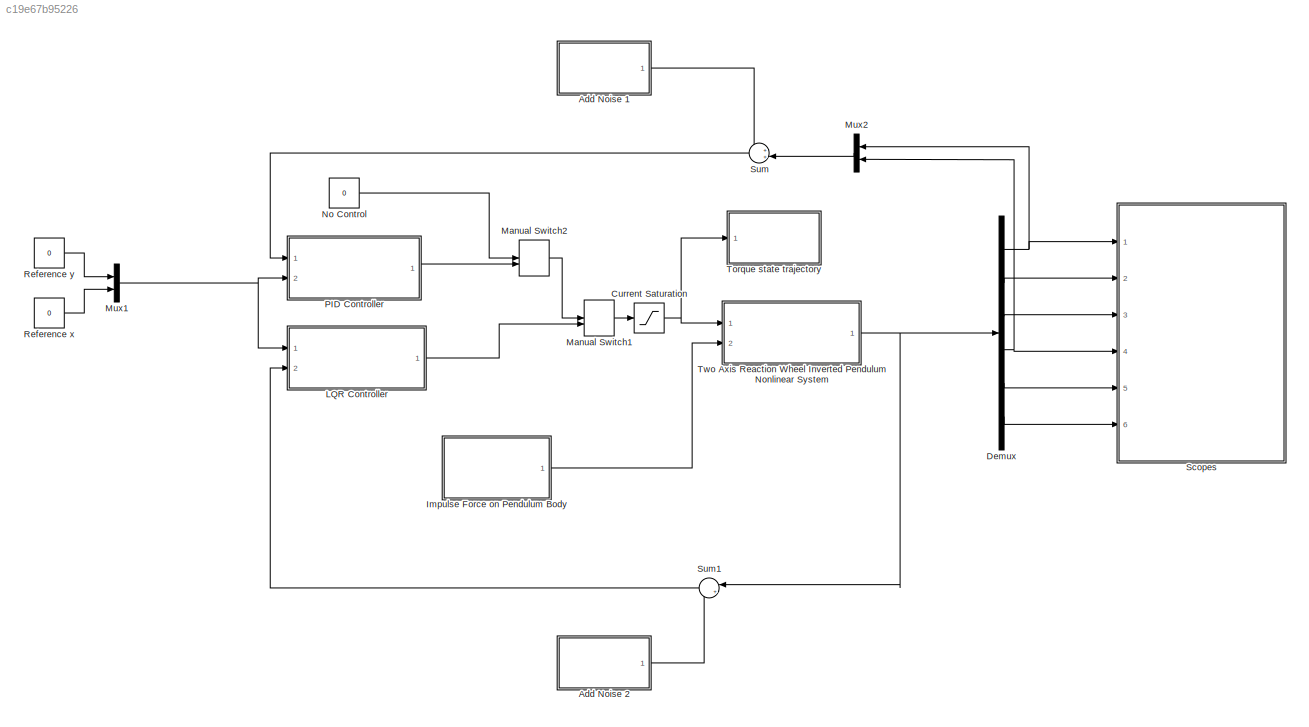
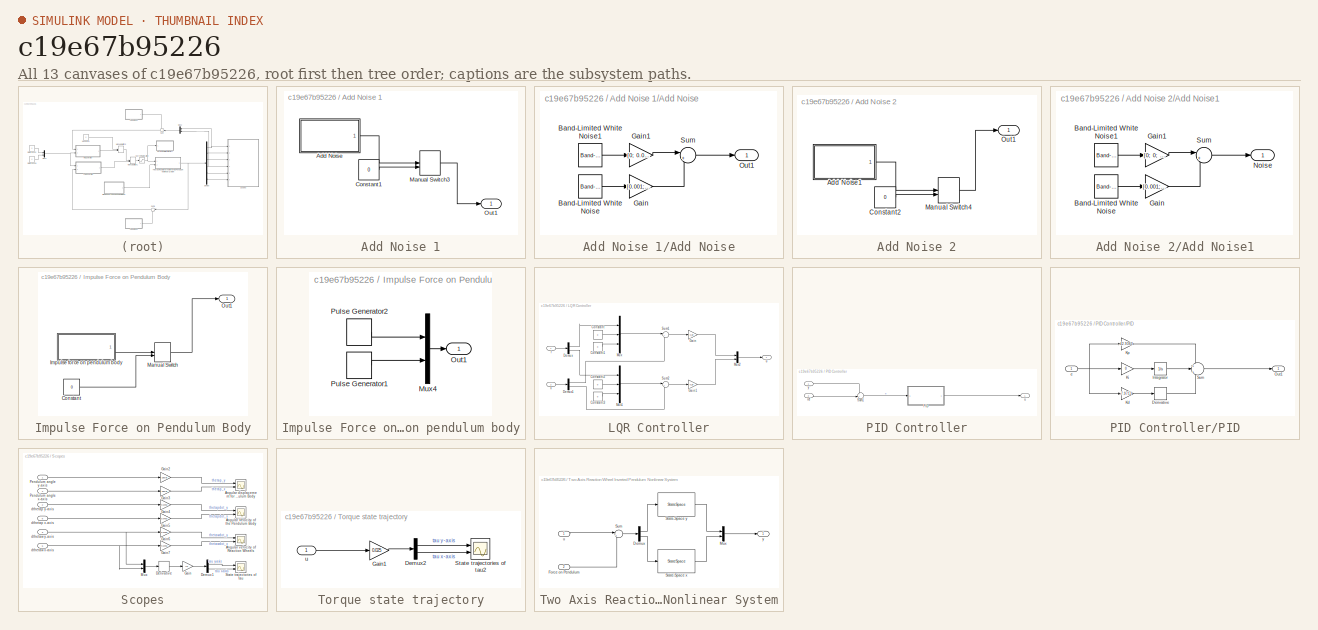
[diagram: thumbnail index - all 13 canvases of the model, root first then tree order]
MODEL slx_c19e67b95226
KIND model
CONFIG AbsTol = auto
CONFIG EnableMultiTasking = off
CONFIG FixedStep = auto
CONFIG MaxStep = auto
CONFIG MinStep = auto
CONFIG RelTol = 1e-3
CONFIG SampleTimeConstraint = Unconstrained
CONFIG Solver = VariableStepAuto
CONFIG SolverName = VariableStepAuto
CONFIG StartTime = 0.0
CONFIG StopTime = 10.0
BLOCK [SubSystem] Add Noise 1
  Ports = [0, 1]
  RequestExecContextInheritance = off
BLOCK [SubSystem] Add Noise 1/Add Noise
  Ports = [0, 1]
  RequestExecContextInheritance = off
BLOCK [Reference] Add Noise 1/Add Noise/Band-Limited White Noise  REF=simulink/Sources/Band-Limited
White Noise
  Ports = [0, 1]
  SourceBlock = simulink/Sources/Band-Limited\nWhite Noise
  SourceProductBaseCode = SL
  SourceProductName = Simulink
  SourceType = Band-Limited White Noise.
BLOCK [Reference] Add Noise 1/Add Noise/Band-Limited White Noise1  REF=simulink/Sources/Band-Limited
White Noise
  Ports = [0, 1]
  SourceBlock = simulink/Sources/Band-Limited\nWhite Noise
  SourceProductBaseCode = SL
  SourceProductName = Simulink
  SourceType = Band-Limited White Noise.
BLOCK [Gain] Add Noise 1/Add Noise/Gain
  Gain = [0.001; 0]
  Multiplication = Matrix(K*u)
  OutDataTypeStr = Inherit: Inherit via internal rule
  ParamDataTypeStr = Inherit: Inherit via internal rule
  SaturateOnIntegerOverflow = off
BLOCK [Gain] Add Noise 1/Add Noise/Gain1
  Gain = [0; 0.001]
  Multiplication = Matrix(K*u)
  OutDataTypeStr = Inherit: Inherit via internal rule
  ParamDataTypeStr = Inherit: Inherit via internal rule
  SaturateOnIntegerOverflow = off
BLOCK [Outport] Add Noise 1/Add Noise/Out1
  IconDisplay = Port number
BLOCK [Sum] Add Noise 1/Add Noise/Sum
  IconShape = round
  InputSameDT = off
  Inputs = |++
  OutDataTypeStr = Inherit: Inherit via internal rule
  Ports = [2, 1]
  SaturateOnIntegerOverflow = off
BLOCK [Constant] Add Noise 1/Constant1
  Value = 0
BLOCK [ManualSwitch] Add Noise 1/Manual Switch3
  CurrentSetting = 0
BLOCK [Outport] Add Noise 1/Out1
  IconDisplay = Port number
BLOCK [SubSystem] Add Noise 2
  Ports = [0, 1]
  RequestExecContextInheritance = off
BLOCK [SubSystem] Add Noise 2/Add Noise1
  Ports = [0, 1]
  RequestExecContextInheritance = off
BLOCK [Reference] Add Noise 2/Add Noise1/Band-Limited White Noise  REF=simulink/Sources/Band-Limited
White Noise
  Ports = [0, 1]
  SourceBlock = simulink/Sources/Band-Limited\nWhite Noise
  SourceProductBaseCode = SL
  SourceProductName = Simulink
  SourceType = Band-Limited White Noise.
BLOCK [Reference] Add Noise 2/Add Noise1/Band-Limited White Noise1  REF=simulink/Sources/Band-Limited
White Noise
  Ports = [0, 1]
  SourceBlock = simulink/Sources/Band-Limited\nWhite Noise
  SourceProductBaseCode = SL
  SourceProductName = Simulink
  SourceType = Band-Limited White Noise.
BLOCK [Gain] Add Noise 2/Add Noise1/Gain
  Gain = [0.001; 0; 0; 0; 0; 0]
  Multiplication = Matrix(K*u)
  OutDataTypeStr = Inherit: Inherit via internal rule
  ParamDataTypeStr = Inherit: Inherit via internal rule
  SaturateOnIntegerOverflow = off
BLOCK [Gain] Add Noise 2/Add Noise1/Gain1
  Gain = [0; 0; 0; 0.001; 0; 0]
  Multiplication = Matrix(K*u)
  OutDataTypeStr = Inherit: Inherit via internal rule
  ParamDataTypeStr = Inherit: Inherit via internal rule
  SaturateOnIntegerOverflow = off
BLOCK [Outport] Add Noise 2/Add Noise1/Noise
  IconDisplay = Port number
BLOCK [Sum] Add Noise 2/Add Noise1/Sum
  IconShape = round
  InputSameDT = off
  Inputs = |++
  OutDataTypeStr = Inherit: Inherit via internal rule
  Ports = [2, 1]
  SaturateOnIntegerOverflow = off
BLOCK [Constant] Add Noise 2/Constant2
  Value = 0
BLOCK [ManualSwitch] Add Noise 2/Manual Switch4
  CurrentSetting = 0
BLOCK [Outport] Add Noise 2/Out1
  IconDisplay = Port number
BLOCK [Saturate] Current Saturation
  InputPortMap = u0
  LowerLimit = -Imax
  Ports = [1, 1]
  UpperLimit = Imax
BLOCK [Demux] Demux
  DisplayOption = bar
  Outputs = 6
  Ports = [1, 6]
BLOCK [SubSystem] Impulse Force on Pendulum Body
  Ports = [0, 1]
  RequestExecContextInheritance = off
BLOCK [Constant] Impulse Force on Pendulum Body/Constant
  Value = 0
BLOCK [SubSystem] Impulse Force on Pendulum Body/Impulse force on pendulum body
  Ports = [0, 1]
  RequestExecContextInheritance = off
BLOCK [Mux] Impulse Force on Pendulum Body/Impulse force on pendulum body/Mux4
  DisplayOption = bar
  Inputs = 2
  Ports = [2, 1]
BLOCK [Outport] Impulse Force on Pendulum Body/Impulse force on pendulum body/Out1
  IconDisplay = Port number
BLOCK [DiscretePulseGenerator] Impulse Force on Pendulum Body/Impulse force on pendulum body/Pulse Generator1
  Amplitude = -100
  Period = 10
  PhaseDelay = 5
  Ports = [0, 1]
  PulseType = Time based
  PulseWidth = 0.3
BLOCK [DiscretePulseGenerator] Impulse Force on Pendulum Body/Impulse force on pendulum body/Pulse Generator2
  Amplitude = 200
  Period = 10
  PhaseDelay = 5
  Ports = [0, 1]
  PulseType = Time based
  PulseWidth = 0.3
BLOCK [ManualSwitch] Impulse Force on Pendulum Body/Manual Switch
BLOCK [Outport] Impulse Force on Pendulum Body/Out1
  IconDisplay = Port number
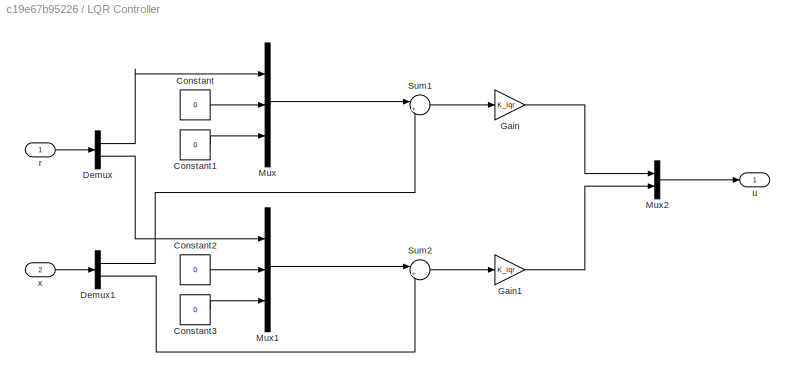
BLOCK [SubSystem] LQR Controller
  Ports = [2, 1]
  RequestExecContextInheritance = off
BLOCK [Constant] LQR Controller/Constant
  Value = 0
BLOCK [Constant] LQR Controller/Constant1
  Value = 0
BLOCK [Constant] LQR Controller/Constant2
  Value = 0
BLOCK [Constant] LQR Controller/Constant3
  Value = 0
BLOCK [Demux] LQR Controller/Demux
  DisplayOption = bar
  Outputs = 2
  Ports = [1, 2]
BLOCK [Demux] LQR Controller/Demux1
  DisplayOption = bar
  Outputs = 2
  Ports = [1, 2]
BLOCK [Gain] LQR Controller/Gain
  Gain = K_lqr
  Multiplication = Matrix(K*u)
  OutDataTypeStr = Inherit: Inherit via internal rule
  ParamDataTypeStr = Inherit: Inherit via internal rule
  SaturateOnIntegerOverflow = off
BLOCK [Gain] LQR Controller/Gain1
  Gain = K_lqr
  Multiplication = Matrix(K*u)
  OutDataTypeStr = Inherit: Inherit via internal rule
  ParamDataTypeStr = Inherit: Inherit via internal rule
  SaturateOnIntegerOverflow = off
BLOCK [Mux] LQR Controller/Mux
  DisplayOption = bar
  Inputs = 3
  Ports = [3, 1]
BLOCK [Mux] LQR Controller/Mux1
  DisplayOption = bar
  Inputs = 3
  Ports = [3, 1]
BLOCK [Mux] LQR Controller/Mux2
  DisplayOption = bar
  Inputs = 2
  Ports = [2, 1]
BLOCK [Sum] LQR Controller/Sum1
  IconShape = round
  InputSameDT = off
  Inputs = |+-
  OutDataTypeStr = Inherit: Inherit via internal rule
  Ports = [2, 1]
  SaturateOnIntegerOverflow = off
BLOCK [Sum] LQR Controller/Sum2
  IconShape = round
  InputSameDT = off
  Inputs = |+-
  OutDataTypeStr = Inherit: Inherit via internal rule
  Ports = [2, 1]
  SaturateOnIntegerOverflow = off
BLOCK [Inport] LQR Controller/r
  IconDisplay = Port number
BLOCK [Outport] LQR Controller/u
  IconDisplay = Port number
BLOCK [Inport] LQR Controller/x
  IconDisplay = Port number
  Port = 2
BLOCK [ManualSwitch] Manual Switch1
BLOCK [ManualSwitch] Manual Switch2
  CurrentSetting = 0
BLOCK [Mux] Mux1
  DisplayOption = bar
  Inputs = 2
  Ports = [2, 1]
BLOCK [Mux] Mux2
  DisplayOption = bar
  Inputs = 2
  Ports = [2, 1]
BLOCK [Constant] No Control
  Value = 0
BLOCK [SubSystem] PID Controller
  Ports = [2, 1]
  RequestExecContextInheritance = off
BLOCK [SubSystem] PID Controller/PID
  Ports = [1, 1]
  RequestExecContextInheritance = off
BLOCK [Derivative] PID Controller/PID/Derivative
BLOCK [Integrator] PID Controller/PID/Integrator
  Ports = [1, 1]
BLOCK [Gain] PID Controller/PID/Kd
  Gain = -7.9713
  OutDataTypeStr = Inherit: Inherit via internal rule
  ParamDataTypeStr = Inherit: Inherit via internal rule
  SaturateOnIntegerOverflow = off
BLOCK [Gain] PID Controller/PID/Ki
  Gain = 0
  OutDataTypeStr = Inherit: Inherit via internal rule
  ParamDataTypeStr = Inherit: Inherit via internal rule
  SaturateOnIntegerOverflow = off
BLOCK [Gain] PID Controller/PID/Kp
  Gain = -42.9360
  OutDataTypeStr = Inherit: Inherit via internal rule
  ParamDataTypeStr = Inherit: Inherit via internal rule
  SaturateOnIntegerOverflow = off
BLOCK [Outport] PID Controller/PID/Out1
  IconDisplay = Port number
BLOCK [Sum] PID Controller/PID/Sum
  IconShape = round
  InputSameDT = off
  Inputs = +|+|+
  OutDataTypeStr = Inherit: Inherit via internal rule
  Ports = [3, 1]
  SaturateOnIntegerOverflow = off
BLOCK [Inport] PID Controller/PID/e
  IconDisplay = Port number
BLOCK [Sum] PID Controller/Sum1
  IconShape = round
  InputSameDT = off
  Inputs = -+|
  OutDataTypeStr = Inherit: Inherit via internal rule
  Ports = [2, 1]
  SaturateOnIntegerOverflow = off
BLOCK [Inport] PID Controller/ref
  IconDisplay = Port number
  Port = 2
BLOCK [Outport] PID Controller/u
  IconDisplay = Port number
BLOCK [Inport] PID Controller/y
  IconDisplay = Port number
BLOCK [Constant] Reference x
  Value = 0
BLOCK [Constant] Reference y
  Value = 0
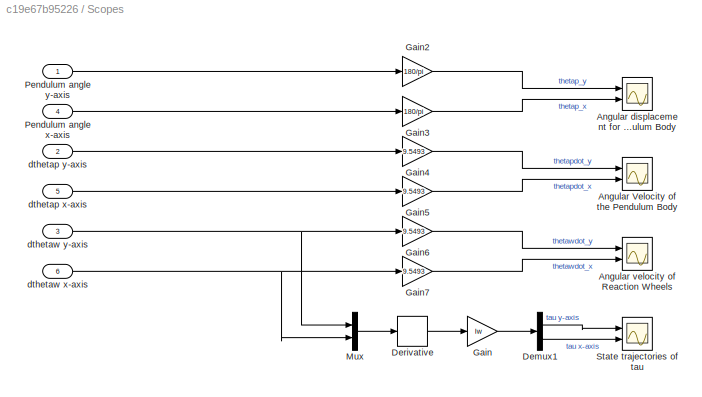
BLOCK [SubSystem] Scopes
  Ports = [6]
  RequestExecContextInheritance = off
BLOCK [Scope] Scopes/Angular Velocity of the Pendulum Body
  Floating = off
  NumInputPorts = 2
  Ports = [2]
  ScopeSpecificationString = Simulink.scopes.TimeScopeBlockCfg('CurrentConfiguration', extmgr.ConfigurationSet(extmgr.Configuration('Core','General UI',true,'FigureColor',[1 1 1]),extmgr.Configuration('Core','Source UI',true),extmgr.Configuration('Sources','WiredSimulink',true,'DataLoggingVariableName','ScopeData1'),extmgr.Configuration('Visuals','Time Domain',true,'SerializedDisplays',{struct('MinYLimReal','-68.62772','MaxYL...<+1709ch>
BLOCK [Scope] Scopes/Angular displacement for Pendulum Body
  Floating = off
  NumInputPorts = 2
  Ports = [2]
  ScopeSpecificationString = Simulink.scopes.TimeScopeBlockCfg('CurrentConfiguration', extmgr.ConfigurationSet(extmgr.Configuration('Core','General UI',true,'FigureColor',[1 1 1]),extmgr.Configuration('Core','Source UI',true),extmgr.Configuration('Sources','WiredSimulink',true,'DataLoggingVariableName','ScopeData2'),extmgr.Configuration('Visuals','Time Domain',true,'SerializedDisplays',{struct('MinYLimReal','-7.5','MaxYLimRea...<+1835ch>
BLOCK [Scope] Scopes/Angular velocity of Reaction Wheels
  Floating = off
  NumInputPorts = 2
  Ports = [2]
  ScopeSpecificationString = Simulink.scopes.TimeScopeBlockCfg('CurrentConfiguration', extmgr.ConfigurationSet(extmgr.Configuration('Core','General UI',true,'FigureColor',[1 1 1]),extmgr.Configuration('Core','Source UI',true),extmgr.Configuration('Sources','WiredSimulink',true,'DataLoggingVariableName','ScopeData3'),extmgr.Configuration('Visuals','Time Domain',true,'SerializedDisplays',{struct('MinYLimReal','-2071897851938583...<+2003ch>
BLOCK [Demux] Scopes/Demux1
  DisplayOption = bar
  Outputs = 2
  Ports = [1, 2]
BLOCK [Derivative] Scopes/Derivative
BLOCK [Gain] Scopes/Gain
  Gain = Iw
  OutDataTypeStr = Inherit: Inherit via internal rule
  ParamDataTypeStr = Inherit: Inherit via internal rule
  SaturateOnIntegerOverflow = off
BLOCK [Gain] Scopes/Gain2
  Gain = 180/pi
  OutDataTypeStr = Inherit: Inherit via internal rule
  ParamDataTypeStr = Inherit: Inherit via internal rule
  SaturateOnIntegerOverflow = off
BLOCK [Gain] Scopes/Gain3
  Gain = 180/pi
  OutDataTypeStr = Inherit: Inherit via internal rule
  ParamDataTypeStr = Inherit: Inherit via internal rule
  SaturateOnIntegerOverflow = off
BLOCK [Gain] Scopes/Gain4
  Gain = 9.5493
  OutDataTypeStr = Inherit: Inherit via internal rule
  ParamDataTypeStr = Inherit: Inherit via internal rule
  SaturateOnIntegerOverflow = off
BLOCK [Gain] Scopes/Gain5
  Gain = 9.5493
  OutDataTypeStr = Inherit: Inherit via internal rule
  ParamDataTypeStr = Inherit: Inherit via internal rule
  SaturateOnIntegerOverflow = off
BLOCK [Gain] Scopes/Gain6
  Gain = 9.5493
  OutDataTypeStr = Inherit: Inherit via internal rule
  ParamDataTypeStr = Inherit: Inherit via internal rule
  SaturateOnIntegerOverflow = off
BLOCK [Gain] Scopes/Gain7
  Gain = 9.5493
  OutDataTypeStr = Inherit: Inherit via internal rule
  ParamDataTypeStr = Inherit: Inherit via internal rule
  SaturateOnIntegerOverflow = off
BLOCK [Mux] Scopes/Mux
  DisplayOption = bar
  Inputs = 2
  Ports = [2, 1]
BLOCK [Inport] Scopes/Pendulum angle x-axis
  IconDisplay = Port number
  Port = 4
BLOCK [Inport] Scopes/Pendulum angle y-axis
  IconDisplay = Port number
BLOCK [Scope] Scopes/State trajectories of tau
  Floating = off
  NumInputPorts = 2
  Ports = [2]
  ScopeSpecificationString = Simulink.scopes.TimeScopeBlockCfg('CurrentConfiguration', extmgr.ConfigurationSet(extmgr.Configuration('Core','General UI',true,'FigureColor',[1 1 1]),extmgr.Configuration('Core','Source UI',true),extmgr.Configuration('Sources','WiredSimulink',true),extmgr.Configuration('Visuals','Time Domain',true,'SerializedDisplays',{struct('MinYLimReal','-1464524627729554.00000','MaxYLimReal','744331551857713....<+1910ch>
BLOCK [Inport] Scopes/dthetap x-axis
  IconDisplay = Port number
  Port = 5
BLOCK [Inport] Scopes/dthetap y-axis
  IconDisplay = Port number
  Port = 2
BLOCK [Inport] Scopes/dthetaw x-axis
  IconDisplay = Port number
  Port = 6
BLOCK [Inport] Scopes/dthetaw y-axis
  IconDisplay = Port number
  Port = 3
BLOCK [Sum] Sum
  IconShape = round
  InputSameDT = off
  Inputs = ++|
  OutDataTypeStr = Inherit: Inherit via internal rule
  Ports = [2, 1]
  SaturateOnIntegerOverflow = off
BLOCK [Sum] Sum1
  IconShape = round
  InputSameDT = off
  Inputs = |++
  OutDataTypeStr = Inherit: Inherit via internal rule
  Ports = [2, 1]
  SaturateOnIntegerOverflow = off
BLOCK [SubSystem] Torque state trajectory
  Ports = [1]
  RequestExecContextInheritance = off
BLOCK [Demux] Torque state trajectory/Demux2
  DisplayOption = bar
  Outputs = 2
  Ports = [1, 2]
BLOCK [Gain] Torque state trajectory/Gain1
  Gain = 0.025
  OutDataTypeStr = Inherit: Inherit via internal rule
  ParamDataTypeStr = Inherit: Inherit via internal rule
  SaturateOnIntegerOverflow = off
BLOCK [Scope] Torque state trajectory/State trajectories of tau2
  Floating = off
  NumInputPorts = 2
  Ports = [2]
  ScopeSpecificationString = Simulink.scopes.TimeScopeBlockCfg('CurrentConfiguration', extmgr.ConfigurationSet(extmgr.Configuration('Core','General UI',true,'FigureColor',[1 1 1]),extmgr.Configuration('Core','Source UI',true),extmgr.Configuration('Sources','WiredSimulink',true,'DataLoggingVariableName','ScopeData4'),extmgr.Configuration('Visuals','Time Domain',true,'SerializedDisplays',{struct('MinYLimReal','-0.175','MaxYLimR...<+1825ch>
BLOCK [Inport] Torque state trajectory/u
  IconDisplay = Port number
BLOCK [SubSystem] Two Axis Reaction Wheel Inverted Pendulum Nonlinear System
  Ports = [2, 1]
  RequestExecContextInheritance = off
BLOCK [Demux] Two Axis Reaction Wheel Inverted Pendulum Nonlinear System/Demux
  DisplayOption = bar
  Outputs = 2
  Ports = [1, 2]
BLOCK [Inport] Two Axis Reaction Wheel Inverted Pendulum Nonlinear System/Force on Pendulum
  IconDisplay = Port number
  Port = 2
BLOCK [Mux] Two Axis Reaction Wheel Inverted Pendulum Nonlinear System/Mux
  DisplayOption = bar
  Inputs = 2
  Ports = [2, 1]
BLOCK [StateSpace] Two Axis Reaction Wheel Inverted Pendulum Nonlinear System/State-Space x
  A = A
  B = B
  C = C
  D = [0; 0; 0]
  InitialCondition = [-pi/30; 0; 0]
  Ports = [1, 1]
BLOCK [StateSpace] Two Axis Reaction Wheel Inverted Pendulum Nonlinear System/State-Space y
  A = A
  B = B
  C = C
  D = [0; 0; 0]
  InitialCondition = [pi/30; 0; 0]
  Ports = [1, 1]
BLOCK [Sum] Two Axis Reaction Wheel Inverted Pendulum Nonlinear System/Sum
  IconShape = round
  InputSameDT = off
  Inputs = |+-
  OutDataTypeStr = Inherit: Inherit via internal rule
  Ports = [2, 1]
  SaturateOnIntegerOverflow = off
BLOCK [Inport] Two Axis Reaction Wheel Inverted Pendulum Nonlinear System/u
  IconDisplay = Port number
BLOCK [Outport] Two Axis Reaction Wheel Inverted Pendulum Nonlinear System/y
  IconDisplay = Port number
LINE Add Noise 1/Add Noise/Band-Limited White Noise1:1 -> Add Noise 1/Add Noise/Gain1:1
LINE Add Noise 1/Add Noise/Band-Limited White Noise:1 -> Add Noise 1/Add Noise/Gain:1
LINE Add Noise 1/Add Noise/Gain1:1 -> Add Noise 1/Add Noise/Sum:1
LINE Add Noise 1/Add Noise/Gain:1 -> Add Noise 1/Add Noise/Sum:2
LINE Add Noise 1/Add Noise/Sum:1 -> Add Noise 1/Add Noise/Out1:1
LINE Add Noise 1/Add Noise:1 -> Add Noise 1/Manual Switch3:1
LINE Add Noise 1/Constant1:1 -> Add Noise 1/Manual Switch3:2
LINE Add Noise 1/Manual Switch3:1 -> Add Noise 1/Out1:1
LINE Add Noise 1:1 -> Sum:1
LINE Add Noise 2/Add Noise1/Band-Limited White Noise1:1 -> Add Noise 2/Add Noise1/Gain1:1
LINE Add Noise 2/Add Noise1/Band-Limited White Noise:1 -> Add Noise 2/Add Noise1/Gain:1
LINE Add Noise 2/Add Noise1/Gain1:1 -> Add Noise 2/Add Noise1/Sum:1
LINE Add Noise 2/Add Noise1/Gain:1 -> Add Noise 2/Add Noise1/Sum:2
LINE Add Noise 2/Add Noise1/Sum:1 -> Add Noise 2/Add Noise1/Noise:1
LINE Add Noise 2/Add Noise1:1 -> Add Noise 2/Manual Switch4:1
LINE Add Noise 2/Constant2:1 -> Add Noise 2/Manual Switch4:2
LINE Add Noise 2/Manual Switch4:1 -> Add Noise 2/Out1:1
LINE Add Noise 2:1 -> Sum1:2
NET Current Saturation:1 -> Torque state trajectory:1, Two Axis Reaction Wheel Inverted Pendulum Nonlinear System:1
NET Demux:1 -> Mux2:1, Scopes:1
LINE Demux:2 -> Scopes:2
LINE Demux:3 -> Scopes:3
NET Demux:4 -> Mux2:2, Scopes:4
LINE Demux:5 -> Scopes:5
LINE Demux:6 -> Scopes:6
LINE Impulse Force on Pendulum Body/Constant:1 -> Impulse Force on Pendulum Body/Manual Switch:2
LINE Impulse Force on Pendulum Body/Impulse force on pendulum body/Mux4:1 -> Impulse Force on Pendulum Body/Impulse force on pendulum body/Out1:1
LINE Impulse Force on Pendulum Body/Impulse force on pendulum body/Pulse Generator1:1 -> Impulse Force on Pendulum Body/Impulse force on pendulum body/Mux4:2
LINE Impulse Force on Pendulum Body/Impulse force on pendulum body/Pulse Generator2:1 -> Impulse Force on Pendulum Body/Impulse force on pendulum body/Mux4:1
LINE Impulse Force on Pendulum Body/Impulse force on pendulum body:1 -> Impulse Force on Pendulum Body/Manual Switch:1
LINE Impulse Force on Pendulum Body/Manual Switch:1 -> Impulse Force on Pendulum Body/Out1:1
LINE Impulse Force on Pendulum Body:1 -> Two Axis Reaction Wheel Inverted Pendulum Nonlinear System:2
LINE LQR Controller/Constant1:1 -> LQR Controller/Mux:3
LINE LQR Controller/Constant2:1 -> LQR Controller/Mux1:2
LINE LQR Controller/Constant3:1 -> LQR Controller/Mux1:3
LINE LQR Controller/Constant:1 -> LQR Controller/Mux:2
LINE LQR Controller/Demux1:1 -> LQR Controller/Sum1:2
LINE LQR Controller/Demux1:2 -> LQR Controller/Sum2:2
LINE LQR Controller/Demux:1 -> LQR Controller/Mux:1
LINE LQR Controller/Demux:2 -> LQR Controller/Mux1:1
LINE LQR Controller/Gain1:1 -> LQR Controller/Mux2:2
LINE LQR Controller/Gain:1 -> LQR Controller/Mux2:1
LINE LQR Controller/Mux1:1 -> LQR Controller/Sum2:1
LINE LQR Controller/Mux2:1 -> LQR Controller/u:1
LINE LQR Controller/Mux:1 -> LQR Controller/Sum1:1
LINE LQR Controller/Sum1:1 -> LQR Controller/Gain:1
LINE LQR Controller/Sum2:1 -> LQR Controller/Gain1:1
LINE LQR Controller/r:1 -> LQR Controller/Demux:1
LINE LQR Controller/x:1 -> LQR Controller/Demux1:1
LINE LQR Controller:1 -> Manual Switch1:2
LINE Manual Switch1:1 -> Current Saturation:1
LINE Manual Switch2:1 -> Manual Switch1:1
NET Mux1:1 -> LQR Controller:1, PID Controller:2
LINE Mux2:1 -> Sum:2
LINE No Control:1 -> Manual Switch2:1
LINE PID Controller/PID/Derivative:1 -> PID Controller/PID/Sum:3
LINE PID Controller/PID/Integrator:1 -> PID Controller/PID/Sum:2
LINE PID Controller/PID/Kd:1 -> PID Controller/PID/Derivative:1
LINE PID Controller/PID/Ki:1 -> PID Controller/PID/Integrator:1
LINE PID Controller/PID/Kp:1 -> PID Controller/PID/Sum:1
LINE PID Controller/PID/Sum:1 -> PID Controller/PID/Out1:1
NET PID Controller/PID/e:1 -> PID Controller/PID/Kd:1, PID Controller/PID/Ki:1, PID Controller/PID/Kp:1
LINE PID Controller/PID:1 -> PID Controller/u:1
LINE PID Controller/Sum1:1 -> PID Controller/PID:1
LINE PID Controller/ref:1 -> PID Controller/Sum1:2
LINE PID Controller/y:1 -> PID Controller/Sum1:1
LINE PID Controller:1 -> Manual Switch2:2
LINE Reference x:1 -> Mux1:2
LINE Reference y:1 -> Mux1:1
LINE Scopes/Demux1:1 -> Scopes/State trajectories of tau:1
LINE Scopes/Demux1:2 -> Scopes/State trajectories of tau:2
LINE Scopes/Derivative:1 -> Scopes/Gain:1
LINE Scopes/Gain2:1 -> Scopes/Angular displacement for Pendulum Body:1
LINE Scopes/Gain3:1 -> Scopes/Angular displacement for Pendulum Body:2
LINE Scopes/Gain4:1 -> Scopes/Angular Velocity of the Pendulum Body:1
LINE Scopes/Gain5:1 -> Scopes/Angular Velocity of the Pendulum Body:2
LINE Scopes/Gain6:1 -> Scopes/Angular velocity of Reaction Wheels:1
LINE Scopes/Gain7:1 -> Scopes/Angular velocity of Reaction Wheels:2
LINE Scopes/Gain:1 -> Scopes/Demux1:1
LINE Scopes/Mux:1 -> Scopes/Derivative:1
LINE Scopes/Pendulum angle x-axis:1 -> Scopes/Gain3:1
LINE Scopes/Pendulum angle y-axis:1 -> Scopes/Gain2:1
LINE Scopes/dthetap x-axis:1 -> Scopes/Gain5:1
LINE Scopes/dthetap y-axis:1 -> Scopes/Gain4:1
NET Scopes/dthetaw x-axis:1 -> Scopes/Gain7:1, Scopes/Mux:2
NET Scopes/dthetaw y-axis:1 -> Scopes/Gain6:1, Scopes/Mux:1
LINE Sum1:1 -> LQR Controller:2
LINE Sum:1 -> PID Controller:1
LINE Torque state trajectory/Demux2:1 -> Torque state trajectory/State trajectories of tau2:1
LINE Torque state trajectory/Demux2:2 -> Torque state trajectory/State trajectories of tau2:2
LINE Torque state trajectory/Gain1:1 -> Torque state trajectory/Demux2:1
LINE Torque state trajectory/u:1 -> Torque state trajectory/Gain1:1
LINE Two Axis Reaction Wheel Inverted Pendulum Nonlinear System/Demux:1 -> Two Axis Reaction Wheel Inverted Pendulum Nonlinear System/State-Space y:1
LINE Two Axis Reaction Wheel Inverted Pendulum Nonlinear System/Demux:2 -> Two Axis Reaction Wheel Inverted Pendulum Nonlinear System/State-Space x:1
LINE Two Axis Reaction Wheel Inverted Pendulum Nonlinear System/Force on Pendulum:1 -> Two Axis Reaction Wheel Inverted Pendulum Nonlinear System/Sum:2
LINE Two Axis Reaction Wheel Inverted Pendulum Nonlinear System/Mux:1 -> Two Axis Reaction Wheel Inverted Pendulum Nonlinear System/y:1
LINE Two Axis Reaction Wheel Inverted Pendulum Nonlinear System/State-Space x:1 -> Two Axis Reaction Wheel Inverted Pendulum Nonlinear System/Mux:2
LINE Two Axis Reaction Wheel Inverted Pendulum Nonlinear System/State-Space y:1 -> Two Axis Reaction Wheel Inverted Pendulum Nonlinear System/Mux:1
LINE Two Axis Reaction Wheel Inverted Pendulum Nonlinear System/Sum:1 -> Two Axis Reaction Wheel Inverted Pendulum Nonlinear System/Demux:1
LINE Two Axis Reaction Wheel Inverted Pendulum Nonlinear System/u:1 -> Two Axis Reaction Wheel Inverted Pendulum Nonlinear System/Sum:1
NET Two Axis Reaction Wheel Inverted Pendulum Nonlinear System:1 -> Demux:1, Sum1:1
note: NET lines group one-source signal fan-out (src -> all destinations, sorted); 1:1 wires keep LINE
